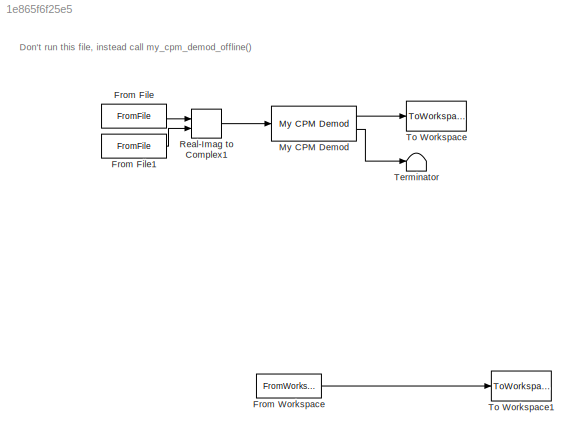
MODEL slx_1e865f6f25e5
KIND model
BLOCK [FromFile] From File
  FileName = _cpmDemodOfflineDataReal.mat
  SampleTime = cpmDemodOfflineSampleTime
BLOCK [FromFile] From File1
  FileName = _cpmDemodOfflineDataImag.mat
  SampleTime = cpmDemodOfflineSampleTime
BLOCK [FromWorkspace] From Workspace
  Commented = on
  SampleTime = 0
  VariableName = cpmDemodOfflinePatternVector
  ZeroCross = on
BLOCK [Reference] My CPM Demod  REF=siglabs_lib/My CPM Demod
  PatternVectorDialog = 0
  PatternVectorRepeatDialog = 0
  Ports = [1, 2]
  RotationsPerSym = 1
  SampsPerSym = 50
  SourceBlock = siglabs_lib/My CPM Demod
BLOCK [RealImagToComplex] Real-Imag to Complex1
  Ports = [2, 1]
BLOCK [Terminator] Terminator
BLOCK [ToWorkspace] To Workspace
  FixptAsFi = on
  MaxDataPoints = inf
  Ports = [1]
  SampleTime = -1
  Save2DSignal = 3-D array (concatenate along third dimension)
  VariableName = cpmDemodOfflineDataOut
BLOCK [ToWorkspace] To Workspace1
  Commented = on
  FixptAsFi = on
  MaxDataPoints = inf
  Ports = [1]
  SampleTime = -1
  Save2DSignal = 3-D array (concatenate along third dimension)
  VariableName = cpmDemodOfflineDataOut
ANNOTATION (root): Don't run this file, instead call my_cpm_demod_offline()
LINE From File1:1 -> Real-Imag to Complex1:2
LINE From File:1 -> Real-Imag to Complex1:1
LINE From Workspace:1 -> To Workspace1:1
LINE My CPM Demod:1 -> To Workspace:1
LINE My CPM Demod:2 -> Terminator:1
LINE Real-Imag to Complex1:1 -> My CPM Demod:1
